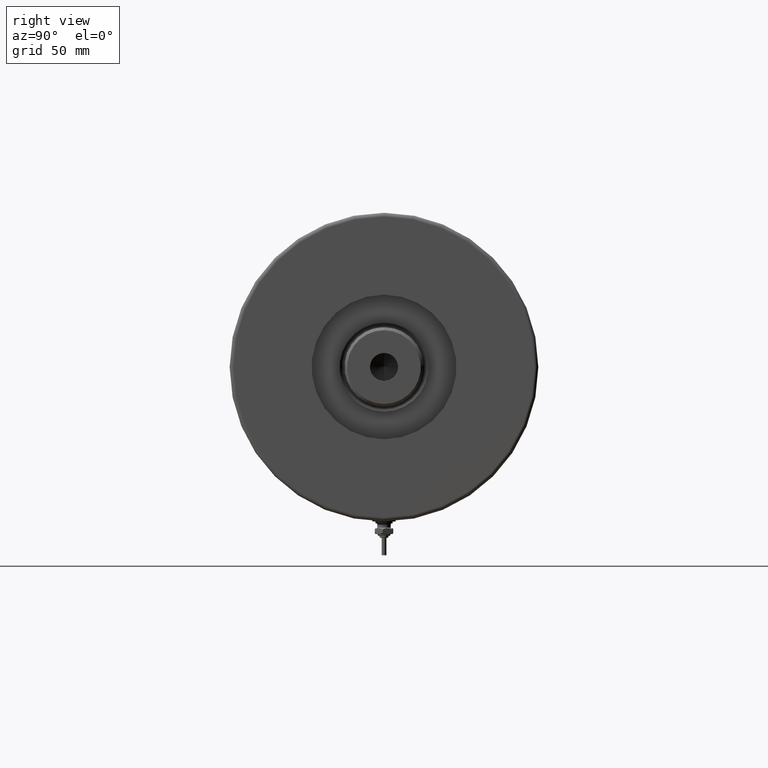
[diagram: clean part render]
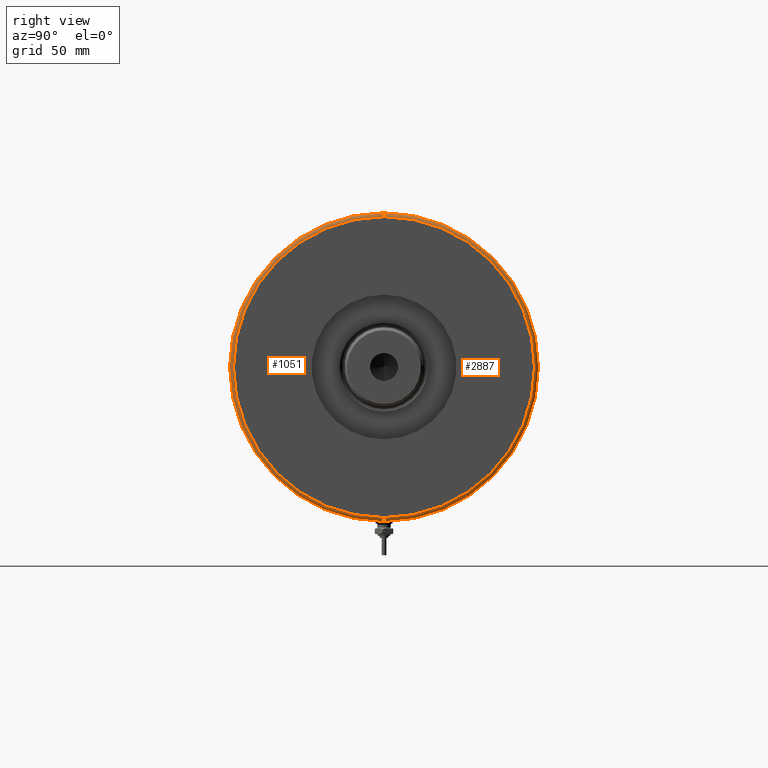
[diagram: same view with one multi-face feature highlighted, each face labeled with its STEP entity id]
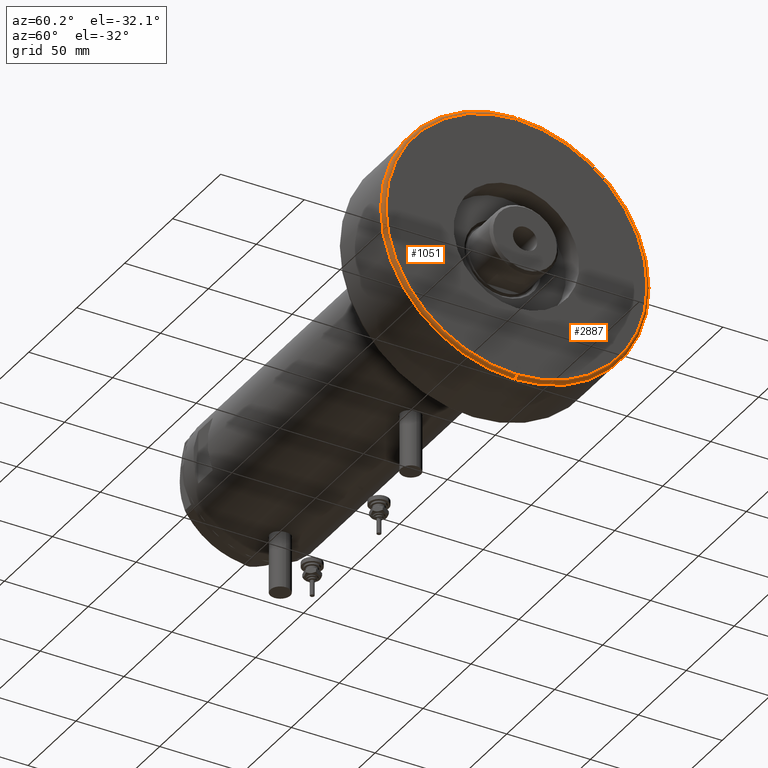
[diagram: same view with one multi-face feature highlighted, each face labeled with its STEP entity id]
A machine part, right view. The highlighted faces form ONE feature: a constant-radius fillet chain: 2 tangent blend faces with common blend radius 2 mm. The faces share edges in the B-rep.
A second angle (auxiliary view) of the same feature is appended — it is thin or edge-on in the first view.
Their STEP definitions:
[1] entity #1051 (Torus):
#39 = DIRECTION ( 'NONE',  ( 0.000000000000000000, 0.000000000000000000, -1.000000000000000000 ) ) ;
#73 = DIRECTION ( 'NONE',  ( -0.000000000000000000, -0.000000000000000000, -1.000000000000000000 ) ) ;
#193 = ORIENTED_EDGE ( 'NONE', *, *, #2463, .F. ) ;
#259 = FACE_OUTER_BOUND ( 'NONE', #5900, .T. ) ;
#406 = CIRCLE ( 'NONE', #5545, 78.00000000000000000 ) ;
#537 = AXIS2_PLACEMENT_3D ( 'NONE', #4470, #593, #39 ) ;
#586 = VERTEX_POINT ( 'NONE', #5188 ) ;
#593 = DIRECTION ( 'NONE',  ( 0.000000000000000000, -1.000000000000000000, 0.000000000000000000 ) ) ;
#1051 = ADVANCED_FACE ( 'NONE', ( #259 ), #4714, .T. ) ;
#1078 = VERTEX_POINT ( 'NONE', #2711 ) ;
#1098 = CARTESIAN_POINT ( 'NONE',  ( 0.000000000000000000, 0.000000000000000000, 44.00000000000000000 ) ) ;
#1147 = VERTEX_POINT ( 'NONE', #5713 ) ;
#1267 = CIRCLE ( 'NONE', #537, 2.000000000000001776 ) ;
#1323 = EDGE_CURVE ( 'NONE', #1147, #1978, #406, .T. ) ;
#1382 = DIRECTION ( 'NONE',  ( 1.224646799147353207E-16, 1.000000000000000000, -0.000000000000000000 ) ) ;
#1465 = AXIS2_PLACEMENT_3D ( 'NONE', #5787, #1382, #4340 ) ;
#1559 = DIRECTION ( 'NONE',  ( 0.000000000000000000, 0.000000000000000000, 1.000000000000000000 ) ) ;
#1978 = VERTEX_POINT ( 'NONE', #2663 ) ;
#2186 = CARTESIAN_POINT ( 'NONE',  ( 0.000000000000000000, 0.000000000000000000, 44.00000000000000000 ) ) ;
#2194 = CIRCLE ( 'NONE', #1465, 2.000000000000001776 ) ;
#2463 = EDGE_CURVE ( 'NONE', #586, #1078, #4431, .T. ) ;
#2539 = CARTESIAN_POINT ( 'NONE',  ( 0.000000000000000000, 0.000000000000000000, 46.00000000000000000 ) ) ;
#2587 = DIRECTION ( 'NONE',  ( 1.000000000000000000, 0.000000000000000000, 0.000000000000000000 ) ) ;
#2663 = CARTESIAN_POINT ( 'NONE',  ( 78.00000000000000000, 0.000000000000000000, 46.00000000000000000 ) ) ;
#2711 = CARTESIAN_POINT ( 'NONE',  ( -80.00000000000000000, 0.000000000000000000, 44.00000000000000000 ) ) ;
#3769 = ORIENTED_EDGE ( 'NONE', *, *, #5716, .T. ) ;
#4140 = DIRECTION ( 'NONE',  ( 0.000000000000000000, 0.000000000000000000, 1.000000000000000000 ) ) ;
#4340 = DIRECTION ( 'NONE',  ( -1.000000000000000000, 1.224646799147349509E-16, 0.000000000000000000 ) ) ;
#4431 = CIRCLE ( 'NONE', #4919, 80.00000000000000000 ) ;
#4470 = CARTESIAN_POINT ( 'NONE',  ( 78.00000000000000000, 0.000000000000000000, 44.00000000000000000 ) ) ;
#4714 = TOROIDAL_SURFACE ( 'NONE', #5233, 78.00000000000000000, 2.000000000000000000 ) ;
#4782 = ORIENTED_EDGE ( 'NONE', *, *, #5629, .F. ) ;
#4919 = AXIS2_PLACEMENT_3D ( 'NONE', #1098, #73, #2587 ) ;
#5188 = CARTESIAN_POINT ( 'NONE',  ( 80.00000000000000000, 9.797174393178826052E-15, 44.00000000000000000 ) ) ;
#5233 = AXIS2_PLACEMENT_3D ( 'NONE', #2186, #4140, #6105 ) ;
#5412 = ORIENTED_EDGE ( 'NONE', *, *, #1323, .F. ) ;
#5486 = DIRECTION ( 'NONE',  ( 1.000000000000000000, 0.000000000000000000, 0.000000000000000000 ) ) ;
#5545 = AXIS2_PLACEMENT_3D ( 'NONE', #2539, #1559, #5486 ) ;
#5629 = EDGE_CURVE ( 'NONE', #1078, #1147, #2194, .T. ) ;
#5713 = CARTESIAN_POINT ( 'NONE',  ( -78.00000000000000000, 9.674709713264090904E-15, 46.00000000000000000 ) ) ;
#5716 = EDGE_CURVE ( 'NONE', #586, #1978, #1267, .T. ) ;
#5787 = CARTESIAN_POINT ( 'NONE',  ( -78.00000000000000000, 9.552245033349355756E-15, 44.00000000000000000 ) ) ;
#5900 = EDGE_LOOP ( 'NONE', ( #4782, #193, #3769, #5412 ) ) ;
#6105 = DIRECTION ( 'NONE',  ( 1.000000000000000000, 0.000000000000000000, 0.000000000000000000 ) ) ;
[2] entity #2887 (Torus):
#4 = CARTESIAN_POINT ( 'NONE',  ( 0.000000000000000000, 0.000000000000000000, 46.00000000000000000 ) ) ;
#39 = DIRECTION ( 'NONE',  ( 0.000000000000000000, 0.000000000000000000, -1.000000000000000000 ) ) ;
#396 = ORIENTED_EDGE ( 'NONE', *, *, #5629, .T. ) ;
#537 = AXIS2_PLACEMENT_3D ( 'NONE', #4470, #593, #39 ) ;
#586 = VERTEX_POINT ( 'NONE', #5188 ) ;
#593 = DIRECTION ( 'NONE',  ( 0.000000000000000000, -1.000000000000000000, 0.000000000000000000 ) ) ;
#864 = CARTESIAN_POINT ( 'NONE',  ( 0.000000000000000000, 0.000000000000000000, 44.00000000000000000 ) ) ;
#1078 = VERTEX_POINT ( 'NONE', #2711 ) ;
#1147 = VERTEX_POINT ( 'NONE', #5713 ) ;
#1267 = CIRCLE ( 'NONE', #537, 2.000000000000001776 ) ;
#1382 = DIRECTION ( 'NONE',  ( 1.224646799147353207E-16, 1.000000000000000000, -0.000000000000000000 ) ) ;
#1388 = DIRECTION ( 'NONE',  ( -0.000000000000000000, -0.000000000000000000, -1.000000000000000000 ) ) ;
#1465 = AXIS2_PLACEMENT_3D ( 'NONE', #5787, #1382, #4340 ) ;
#1978 = VERTEX_POINT ( 'NONE', #2663 ) ;
#2194 = CIRCLE ( 'NONE', #1465, 2.000000000000001776 ) ;
#2231 = EDGE_LOOP ( 'NONE', ( #2723, #396, #3912, #5176 ) ) ;
#2369 = AXIS2_PLACEMENT_3D ( 'NONE', #2911, #4473, #4499 ) ;
#2419 = DIRECTION ( 'NONE',  ( 0.000000000000000000, 0.000000000000000000, 1.000000000000000000 ) ) ;
#2663 = CARTESIAN_POINT ( 'NONE',  ( 78.00000000000000000, 0.000000000000000000, 46.00000000000000000 ) ) ;
#2711 = CARTESIAN_POINT ( 'NONE',  ( -80.00000000000000000, 0.000000000000000000, 44.00000000000000000 ) ) ;
#2723 = ORIENTED_EDGE ( 'NONE', *, *, #4054, .F. ) ;
#2887 = ADVANCED_FACE ( 'NONE', ( #4401 ), #3406, .T. ) ;
#2911 = CARTESIAN_POINT ( 'NONE',  ( 0.000000000000000000, 0.000000000000000000, 44.00000000000000000 ) ) ;
#3406 = TOROIDAL_SURFACE ( 'NONE', #2369, 78.00000000000000000, 2.000000000000000000 ) ;
#3746 = DIRECTION ( 'NONE',  ( 1.000000000000000000, 0.000000000000000000, 0.000000000000000000 ) ) ;
#3912 = ORIENTED_EDGE ( 'NONE', *, *, #4445, .F. ) ;
#3923 = DIRECTION ( 'NONE',  ( 1.000000000000000000, 0.000000000000000000, 0.000000000000000000 ) ) ;
#4054 = EDGE_CURVE ( 'NONE', #1078, #586, #6387, .T. ) ;
#4225 = AXIS2_PLACEMENT_3D ( 'NONE', #864, #1388, #3746 ) ;
#4340 = DIRECTION ( 'NONE',  ( -1.000000000000000000, 1.224646799147349509E-16, 0.000000000000000000 ) ) ;
#4401 = FACE_OUTER_BOUND ( 'NONE', #2231, .T. ) ;
#4445 = EDGE_CURVE ( 'NONE', #1978, #1147, #4734, .T. ) ;
#4470 = CARTESIAN_POINT ( 'NONE',  ( 78.00000000000000000, 0.000000000000000000, 44.00000000000000000 ) ) ;
#4473 = DIRECTION ( 'NONE',  ( 0.000000000000000000, 0.000000000000000000, 1.000000000000000000 ) ) ;
#4499 = DIRECTION ( 'NONE',  ( 1.000000000000000000, 0.000000000000000000, 0.000000000000000000 ) ) ;
#4734 = CIRCLE ( 'NONE', #5770, 78.00000000000000000 ) ;
#5176 = ORIENTED_EDGE ( 'NONE', *, *, #5716, .F. ) ;
#5188 = CARTESIAN_POINT ( 'NONE',  ( 80.00000000000000000, 9.797174393178826052E-15, 44.00000000000000000 ) ) ;
#5629 = EDGE_CURVE ( 'NONE', #1078, #1147, #2194, .T. ) ;
#5713 = CARTESIAN_POINT ( 'NONE',  ( -78.00000000000000000, 9.674709713264090904E-15, 46.00000000000000000 ) ) ;
#5716 = EDGE_CURVE ( 'NONE', #586, #1978, #1267, .T. ) ;
#5770 = AXIS2_PLACEMENT_3D ( 'NONE', #4, #2419, #3923 ) ;
#5787 = CARTESIAN_POINT ( 'NONE',  ( -78.00000000000000000, 9.552245033349355756E-15, 44.00000000000000000 ) ) ;
#6387 = CIRCLE ( 'NONE', #4225, 80.00000000000000000 ) ;